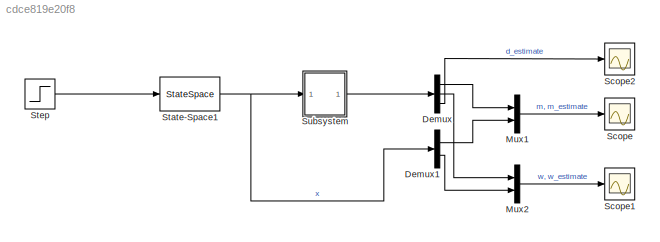
MODEL slx_cdce819e20f8
KIND model
CONFIG AbsTol = auto
CONFIG EnableMultiTasking = off
CONFIG FixedStep = 0.001
CONFIG MaxStep = auto
CONFIG MinStep = auto
CONFIG RelTol = 1e-3
CONFIG SampleTimeConstraint = Unconstrained
CONFIG SolverName = FixedStepAuto
CONFIG StartTime = 0.0
CONFIG StopTime = 15.0
BLOCK [Demux] Demux
  Outputs = 3
BLOCK [Demux] Demux1
  Outputs = 2
BLOCK [Mux] Mux1
  DisplayOption = bar
  Inputs = 2
BLOCK [Mux] Mux2
  DisplayOption = bar
  Inputs = 2
BLOCK [Scope] Scope
  Floating = off
  NumInputPorts = 1
  ScopeSpecificationString = Simulink.scopes.TimeScopeBlockCfg('CurrentConfiguration', extmgr.ConfigurationSet(extmgr.Configuration('Core','General UI',true),extmgr.Configuration('Core','Source UI',true),extmgr.Configuration('Sources','WiredSimulink',true,'DataLoggingVariableName','ScopeData1'),extmgr.Configuration('Visuals','Time Domain',true,'SerializedDisplays',{struct('MinYLimReal','-12.75','MaxYLimReal','114.75','YLabelR...<+1413ch>
BLOCK [Scope] Scope1
  Floating = off
  NumInputPorts = 1
  ScopeSpecificationString = Simulink.scopes.TimeScopeBlockCfg('CurrentConfiguration', extmgr.ConfigurationSet(extmgr.Configuration('Core','General UI',true),extmgr.Configuration('Core','Source UI',true),extmgr.Configuration('Sources','WiredSimulink',true),extmgr.Configuration('Visuals','Time Domain',true,'SerializedDisplays',{struct('MinYLimReal','-40.4956','MaxYLimReal','364.46041','YLabelReal','','MinYLimMag','0.00000','Ma...<+1390ch>
BLOCK [Scope] Scope2
  Floating = off
  NumInputPorts = 1
  ScopeSpecificationString = Simulink.scopes.TimeScopeBlockCfg('CurrentConfiguration', extmgr.ConfigurationSet(extmgr.Configuration('Core','General UI',true),extmgr.Configuration('Core','Source UI',true),extmgr.Configuration('Sources','WiredSimulink',true,'DataLoggingVariableName','ScopeData2'),extmgr.Configuration('Visuals','Time Domain',true,'SerializedDisplays',{struct('MinYLimReal','-1.25','MaxYLimReal','11.25','YLabelRea...<+1355ch>
BLOCK [StateSpace] State-Space1
  A = Ae
  B = Be
  C = Ce
  D = zeros(2,1)
  InitialCondition = x0
BLOCK [Step] Step
  After = 10
  SampleTime = 0
  Time = 5
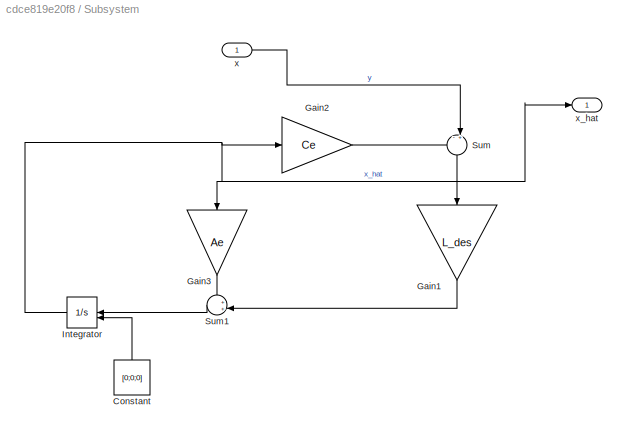
BLOCK [SubSystem] Subsystem
BLOCK [Constant] Subsystem/Constant
  NameLocation = right
  Value = [0;0;0]
BLOCK [Gain] Subsystem/Gain1
  Gain = L_des
  Multiplication = Matrix(K*u) (u vector)
  NameLocation = left
BLOCK [Gain] Subsystem/Gain2
  Gain = Ce
  Multiplication = Matrix(K*u) (u vector)
BLOCK [Gain] Subsystem/Gain3
  Gain = Ae
  Multiplication = Matrix(K*u) (u vector)
  NameLocation = left
BLOCK [Integrator] Subsystem/Integrator
  InitialConditionSource = external
  NameLocation = top
BLOCK [Sum] Subsystem/Sum
  Inputs = -+|
  NameLocation = left
BLOCK [Sum] Subsystem/Sum1
  Inputs = ++|
  NameLocation = top
BLOCK [Inport] Subsystem/x
BLOCK [Outport] Subsystem/x_hat
LINE Demux1:1 -> Mux1:2
LINE Demux1:2 -> Mux2:2
LINE Demux:1 -> Mux1:1
LINE Demux:2 -> Mux2:1
LINE Demux:3 -> Scope2:1
LINE Mux1:1 -> Scope:1
LINE Mux2:1 -> Scope1:1
NET State-Space1:1 -> Demux1:1, Subsystem:1
LINE Step:1 -> State-Space1:1
LINE Subsystem/Constant:1 -> Subsystem/Integrator:2
LINE Subsystem/Gain1:1 -> Subsystem/Sum1:2
LINE Subsystem/Gain2:1 -> Subsystem/Sum:1
LINE Subsystem/Gain3:1 -> Subsystem/Sum1:1
NET Subsystem/Integrator:1 -> Subsystem/Gain2:1, Subsystem/Gain3:1, Subsystem/x_hat:1
LINE Subsystem/Sum1:1 -> Subsystem/Integrator:1
LINE Subsystem/Sum:1 -> Subsystem/Gain1:1
LINE Subsystem/x:1 -> Subsystem/Sum:2
LINE Subsystem:1 -> Demux:1
note: NET lines group one-source signal fan-out (src -> all destinations, sorted); 1:1 wires keep LINE
